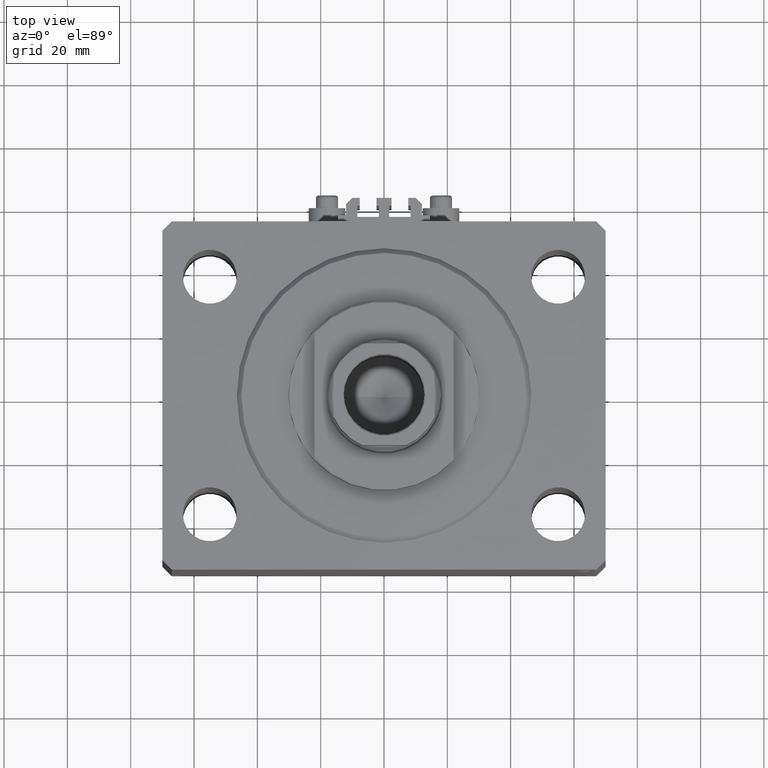
[diagram: clean part render]
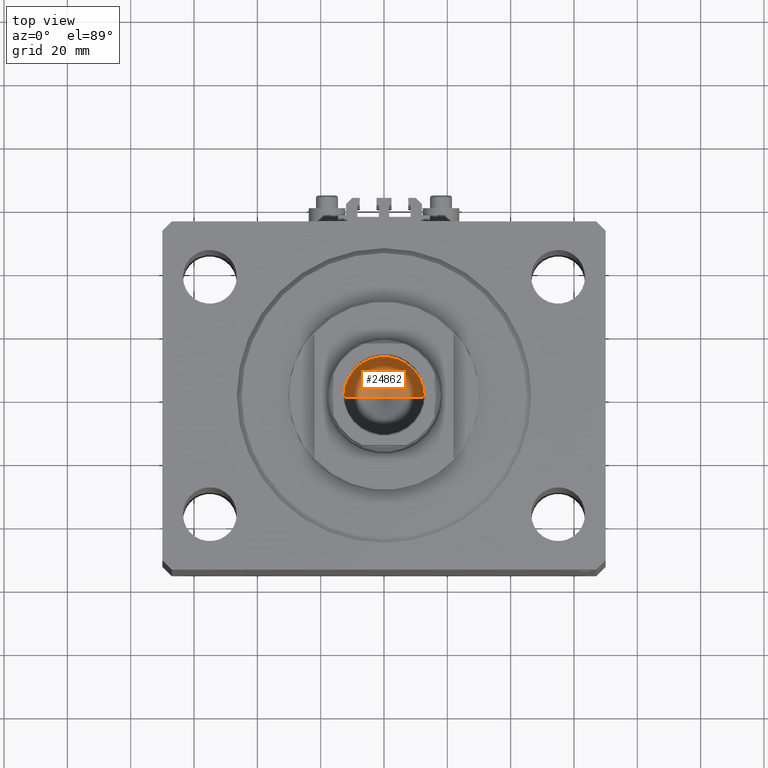
[diagram: same view with one face highlighted and labeled with its STEP entity id]
A machine part, top view. The second image highlights one B-rep face of the part: STEP entity #24862.
In plain terms, the highlighted conical surface has half-angle 59 deg.
Its self-contained STEP definition (entity closure, byte-faithful):
#1166 = CARTESIAN_POINT ( 'NONE',  ( -12.74999999999999112, 1.561424668912874125E-15, 70.00000000000000000 ) ) ;
#2005 = CARTESIAN_POINT ( 'NONE',  ( 12.74999999999999112, 0.000000000000000000, 70.00000000000000000 ) ) ;
#9138 = CARTESIAN_POINT ( 'NONE',  ( -1.307202896762960287E-14, 0.000000000000000000, 62.33902710739860709 ) ) ;
#9486 = DIRECTION ( 'NONE',  ( 1.000000000000000000, 0.000000000000000000, 0.000000000000000000 ) ) ;
#11636 = FACE_OUTER_BOUND ( 'NONE', #44915, .T. ) ;
#12536 = AXIS2_PLACEMENT_3D ( 'NONE', #26247, #21952, #41085 ) ;
#12899 = VECTOR ( 'NONE', #41353, 1000.000000000000000 ) ;
#14936 = VECTOR ( 'NONE', #42445, 1000.000000000000000 ) ;
#16167 = VERTEX_POINT ( 'NONE', #25895 ) ;
#16352 = CONICAL_SURFACE ( 'NONE', #12536, 12.74999999999999112, 1.029744258676653423 ) ;
#18320 = VERTEX_POINT ( 'NONE', #9138 ) ;
#21952 = DIRECTION ( 'NONE',  ( -0.000000000000000000, -0.000000000000000000, 1.000000000000000000 ) ) ;
#22846 = ORIENTED_EDGE ( 'NONE', *, *, #28602, .T. ) ;
#23298 = LINE ( 'NONE', #2005, #14936 ) ;
#24555 = DIRECTION ( 'NONE',  ( -0.000000000000000000, -0.000000000000000000, 1.000000000000000000 ) ) ;
#24862 = ADVANCED_FACE ( 'NONE', ( #11636 ), #16352, .F. ) ;
#25895 = CARTESIAN_POINT ( 'NONE',  ( -12.74999999999999112, 1.561424668912874125E-15, 70.00000000000000000 ) ) ;
#26247 = CARTESIAN_POINT ( 'NONE',  ( 0.000000000000000000, 0.000000000000000000, 70.00000000000000000 ) ) ;
#28142 = CARTESIAN_POINT ( 'NONE',  ( 12.74999999999999112, 0.000000000000000000, 70.00000000000000000 ) ) ;
#28602 = EDGE_CURVE ( 'NONE', #18320, #34521, #23298, .T. ) ;
#30061 = EDGE_CURVE ( 'NONE', #34521, #16167, #37905, .T. ) ;
#30128 = LINE ( 'NONE', #1166, #12899 ) ;
#34521 = VERTEX_POINT ( 'NONE', #28142 ) ;
#35344 = CARTESIAN_POINT ( 'NONE',  ( 0.000000000000000000, 0.000000000000000000, 70.00000000000000000 ) ) ;
#37905 = CIRCLE ( 'NONE', #41717, 12.74999999999999112 ) ;
#40633 = EDGE_CURVE ( 'NONE', #18320, #16167, #30128, .T. ) ;
#41085 = DIRECTION ( 'NONE',  ( 1.000000000000000000, 0.000000000000000000, 0.000000000000000000 ) ) ;
#41353 = DIRECTION ( 'NONE',  ( -0.8571673007021117785, 1.049727191138617956E-16, 0.5150380749100550437 ) ) ;
#41717 = AXIS2_PLACEMENT_3D ( 'NONE', #35344, #24555, #9486 ) ;
#42445 = DIRECTION ( 'NONE',  ( 0.8571673007021117785, 0.000000000000000000, 0.5150380749100550437 ) ) ;
#44915 = EDGE_LOOP ( 'NONE', ( #46155, #22846, #46149 ) ) ;
#46149 = ORIENTED_EDGE ( 'NONE', *, *, #30061, .T. ) ;
#46155 = ORIENTED_EDGE ( 'NONE', *, *, #40633, .F. ) ;